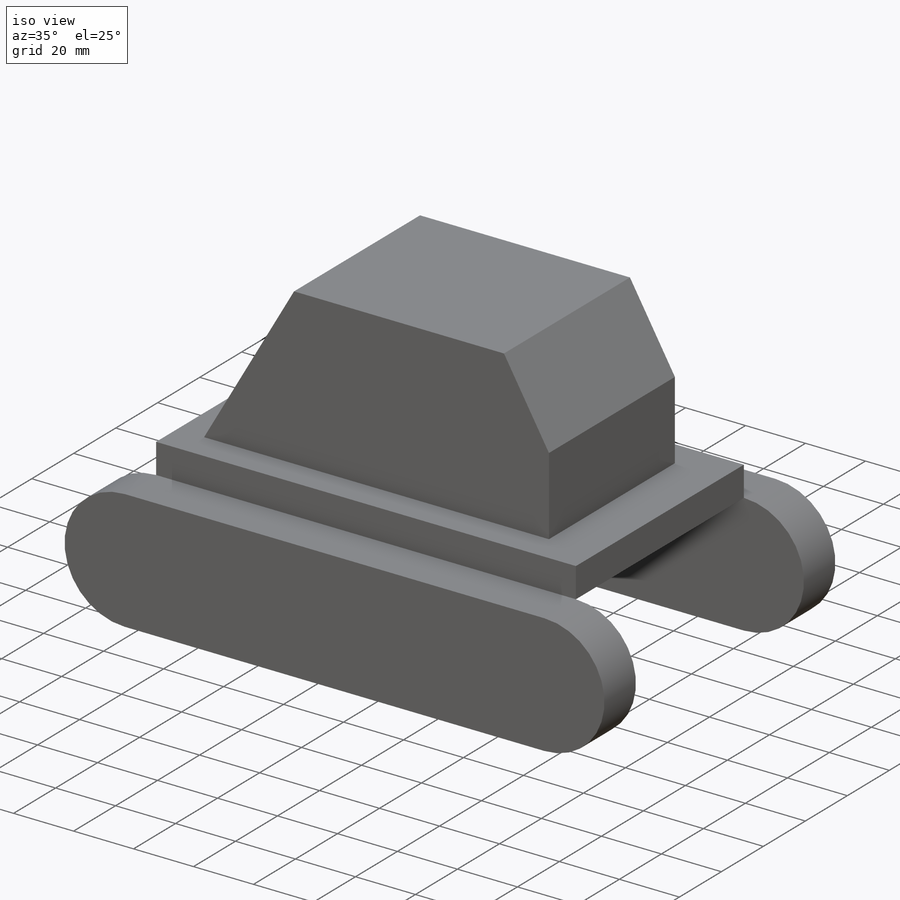
[diagram: iso view]
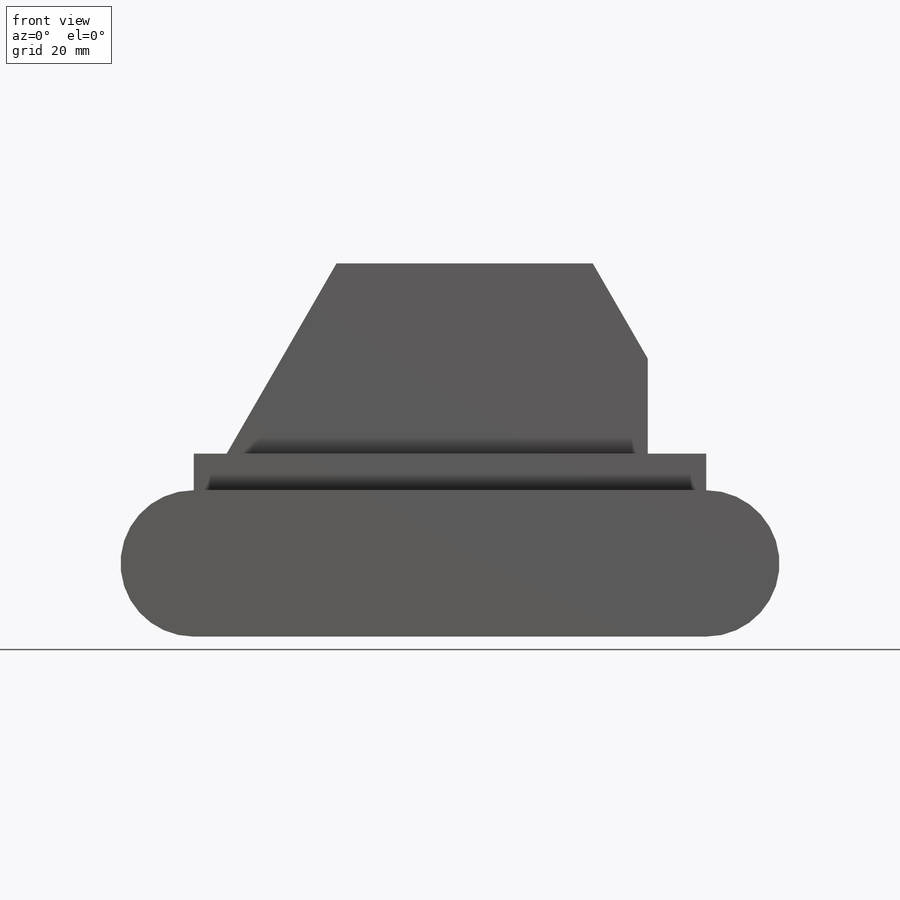
[diagram: front view]
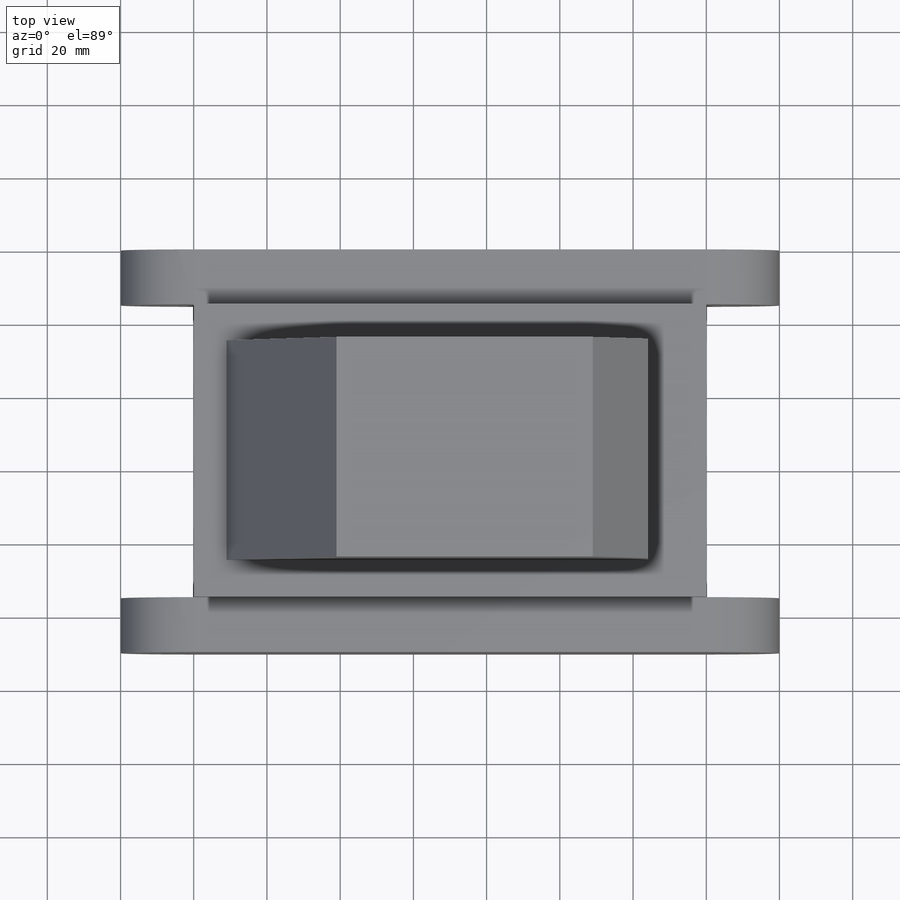
[diagram: top view]
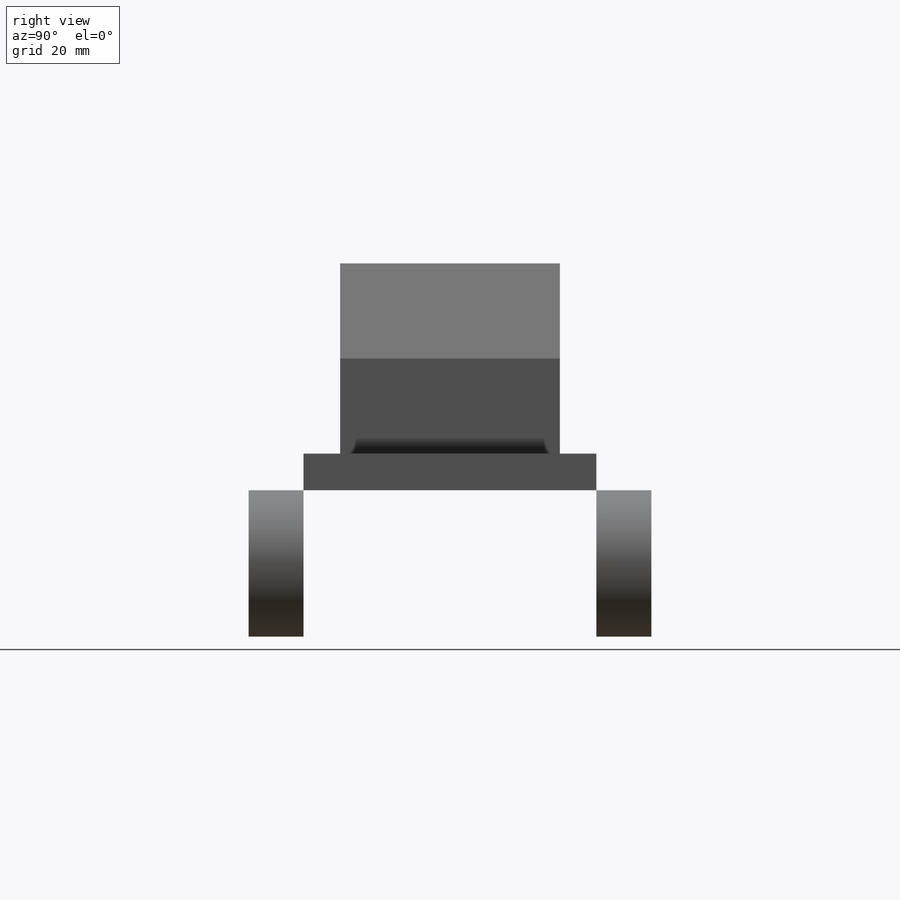
[diagram: right view]
SOLIDWORKS PART (.sldprt)
format: sldprt  version: not decoded by parser v0  size: 276,992 bytes
history: native  units: mm
features: sketch x8, extrude x4, plane x2, material x1 (+12 scaffold rows collapsed)
feature tree (27):
  scaffold x12  (default folders/planes/origin — collapsed)
  material  "Material <not specified>"
  sketch  "Sketch1"  dims[c1.D1=40.0mm c1.D3=40.0mm c1.D2=20.0mm c2.D3=140.0mm]
  extrude  "Boss-Extrude1"  Depth=15mm
  plane  "Plane2"  Offset=40mm
  sketch  "Sketch2"  dims[c1.D1=~114.595728mm c1.D2=~139.665823mm c2.D1=80.0mm c2.D2=140.0mm]
  extrude  "Boss-Extrude2"  Depth=10mm
  plane  "Plane3"  Offset=10mm
  sketch  "Sketch3"  dims[c1.D1=~82.017756mm c2.D1=60.0deg c2.D2=70.0mm c2.D3=60.0mm c2.D4=9.0mm c2.D5=30.0mm c2.D6=30.0mm c3.D6=120.0deg]
  extrude  "Boss-Extrude3"  Depth=60mm
  sketch  "Sketch4"  dims[D1=~13.268454mm]
  extrude  "Boss-Extrude4"  Depth=15mm
  sketch  "Sketch5"  dims[D1=~82.44051mm]
  sketch  "Sketch6"  dims[D1=~134.742995mm]
  sketch  "Sketch7"  dims[D1=~26.234217mm]
  sketch  "Sketch8"  dims[D1=~91.368095mm]
decode coverage: 12 of 12 modeling features carry decoded parameters
note: ~ marks probable driven/reference dimensions
note: suppression state not decoded; provenance and decode notes live in map.json
